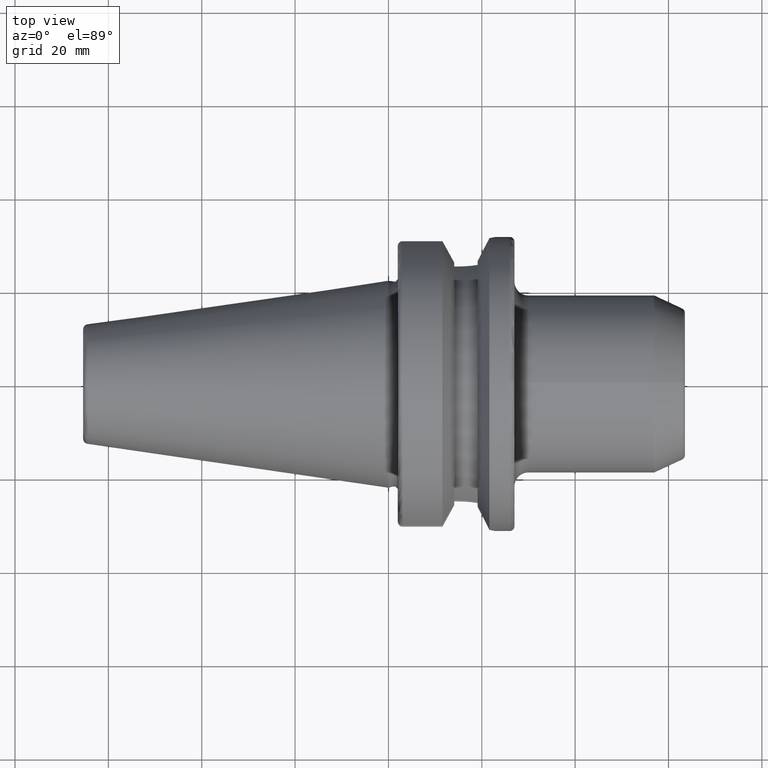
[diagram: clean part render]
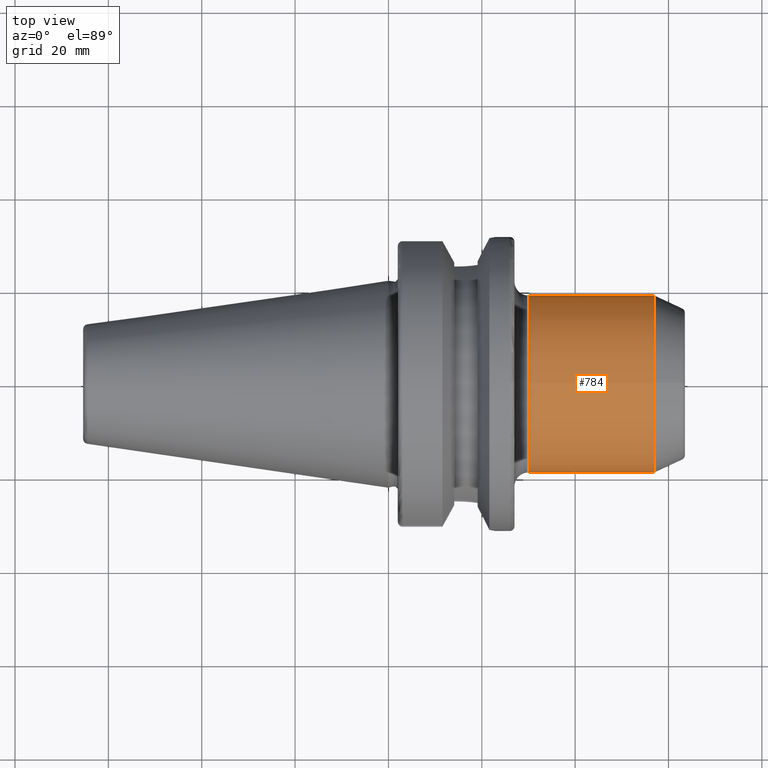
[diagram: same view with one face highlighted and labeled with its STEP entity id]
A machine part, top view. The second image highlights one B-rep face of the part: STEP entity #784.
In plain terms, the highlighted cylindrical surface (bore or boss wall) has radius 19.05 mm, axis along (1, 0, 0).
Its self-contained STEP definition (entity closure, byte-faithful):
#52=FACE_BOUND('',#181,.T.);
#61=CIRCLE('',#856,19.05);
#62=CIRCLE('',#857,19.05);
#63=CIRCLE('',#858,19.05);
#115=CYLINDRICAL_SURFACE('',#855,19.05);
#131=FACE_OUTER_BOUND('',#180,.T.);
#180=EDGE_LOOP('',(#550,#551,#552,#553,#554));
#181=EDGE_LOOP('',(#555));
#237=B_SPLINE_CURVE_WITH_KNOTS('',3,(#1362,#1363,#1364,#1365,#1366,#1367,
#1368,#1369,#1370,#1371,#1372,#1373,#1374,#1375,#1376,#1377,#1378,#1379,
#1380,#1381,#1382,#1383,#1384,#1385,#1386,#1387,#1388,#1389,#1390,#1391,
#1392),.UNSPECIFIED.,.T.,.F.,(4,1,1,1,1,1,1,1,1,1,1,1,1,1,1,1,1,1,1,1,1,
1,1,1,1,1,1,1,4),(-6.01360624481289,-5.82951625772678,-5.76815292869808,
-5.64542627064067,-5.52269961258327,-5.46133628355457,-5.33860962549716,
-5.27724629646846,-5.03179298035364,-4.93974798681059,-4.90906632229624,
-4.78633966423883,-4.66361300618143,-4.54088634812402,-4.43861413307618,
-4.37725080404748,-4.21361525997094,-4.0499797158944,-3.88634417181786,
-3.82498084278915,-3.72270862774131,-3.55907308366477,-3.31361976754996,
-3.25225643852126,-3.06816645143515,-2.94543979337774,-2.82271313532034,
-2.69998647726293,-2.57725981920553),.UNSPECIFIED.);
#257=LINE('',#1437,#301);
#301=VECTOR('',#965,19.05);
#343=VERTEX_POINT('',#1328);
#347=VERTEX_POINT('',#1434);
#348=VERTEX_POINT('',#1436);
#349=VERTEX_POINT('',#1438);
#423=EDGE_CURVE('',#343,#343,#237,.T.);
#427=EDGE_CURVE('',#347,#347,#61,.T.);
#428=EDGE_CURVE('',#347,#348,#257,.T.);
#429=EDGE_CURVE('',#349,#348,#62,.T.);
#430=EDGE_CURVE('',#348,#349,#63,.T.);
#550=ORIENTED_EDGE('',*,*,#427,.F.);
#551=ORIENTED_EDGE('',*,*,#428,.T.);
#552=ORIENTED_EDGE('',*,*,#429,.F.);
#553=ORIENTED_EDGE('',*,*,#430,.F.);
#554=ORIENTED_EDGE('',*,*,#428,.F.);
#555=ORIENTED_EDGE('',*,*,#423,.F.);
#784=ADVANCED_FACE('',(#131,#52),#115,.T.);
#855=AXIS2_PLACEMENT_3D('',#1433,#961,#962);
#856=AXIS2_PLACEMENT_3D('',#1435,#963,#964);
#857=AXIS2_PLACEMENT_3D('',#1439,#966,#967);
#858=AXIS2_PLACEMENT_3D('',#1440,#968,#969);
#961=DIRECTION('center_axis',(1.,0.,0.));
#962=DIRECTION('ref_axis',(0.,0.,-1.));
#963=DIRECTION('center_axis',(1.,0.,0.));
#964=DIRECTION('ref_axis',(0.,0.,-1.));
#965=DIRECTION('',(-1.,0.,0.));
#966=DIRECTION('center_axis',(-1.,0.,0.));
#967=DIRECTION('ref_axis',(0.,-1.22464679914735E-16,1.));
#968=DIRECTION('center_axis',(-1.,0.,0.));
#969=DIRECTION('ref_axis',(0.,-1.22464679914735E-16,1.));
#1328=CARTESIAN_POINT('',(34.4358,2.77555756156289E-16,-19.05));
#1362=CARTESIAN_POINT('Ctrl Pts',(34.4358,2.77555756156289E-16,-19.05));
#1363=CARTESIAN_POINT('Ctrl Pts',(34.4358,0.72196867574077,-19.05));
#1364=CARTESIAN_POINT('Ctrl Pts',(34.601879814108,1.73746107745432,-18.9903521379037));
#1365=CARTESIAN_POINT('Ctrl Pts',(35.1848052606902,3.13775058438493,-18.7995766141753));
#1366=CARTESIAN_POINT('Ctrl Pts',(35.8688325916073,4.20158889812893,-18.5930438091203));
#1367=CARTESIAN_POINT('Ctrl Pts',(36.7047386165858,5.02615773673336,-18.3791057573611));
#1368=CARTESIAN_POINT('Ctrl Pts',(37.7170798473628,5.74538534194473,-18.1666886309281));
#1369=CARTESIAN_POINT('Ctrl Pts',(38.6354633763464,6.18561296274329,-18.0191928377223));
#1370=CARTESIAN_POINT('Ctrl Pts',(40.3586272187347,6.66783981202055,-17.8466248467333));
#1371=CARTESIAN_POINT('Ctrl Pts',(41.9643618198634,6.66850142691638,-17.8463408483285));
#1372=CARTESIAN_POINT('Ctrl Pts',(43.4400711476521,6.21285603856927,-18.009454167078));
#1373=CARTESIAN_POINT('Ctrl Pts',(44.3640639050564,5.802998181804,-18.1463817928884));
#1374=CARTESIAN_POINT('Ctrl Pts',(45.3282961205286,5.1915319491947,-18.336273739841));
#1375=CARTESIAN_POINT('Ctrl Pts',(46.3304244375395,4.20114221030153,-18.5930116279061));
#1376=CARTESIAN_POINT('Ctrl Pts',(47.1065862871304,2.99477548558206,-18.8274563434551));
#1377=CARTESIAN_POINT('Ctrl Pts',(47.5196007511053,1.88405230887221,-18.9654743762629));
#1378=CARTESIAN_POINT('Ctrl Pts',(47.790239834832,0.563050923796351,-19.0586237854546));
#1379=CARTESIAN_POINT('Ctrl Pts',(47.7921793449442,-0.968134530896437,-19.0599912206811));
#1380=CARTESIAN_POINT('Ctrl Pts',(47.1921989795799,-2.95518281459495,-18.851716666255));
#1381=CARTESIAN_POINT('Ctrl Pts',(46.2769701009462,-4.25518687574198,-18.577063296619));
#1382=CARTESIAN_POINT('Ctrl Pts',(45.3658996572714,-5.12402121299558,-18.3518210575335));
#1383=CARTESIAN_POINT('Ctrl Pts',(44.2865157236704,-5.89957764605774,-18.121039488879));
#1384=CARTESIAN_POINT('Ctrl Pts',(42.2623797054644,-6.67011455821485,-17.8459031373588));
#1385=CARTESIAN_POINT('Ctrl Pts',(40.3585570425987,-6.66565043506348,-17.8468647876023));
#1386=CARTESIAN_POINT('Ctrl Pts',(38.3898433357335,-6.12047008001105,-18.0433426730419));
#1387=CARTESIAN_POINT('Ctrl Pts',(37.04058779564,-5.36230933325078,-18.2923117488831));
#1388=CARTESIAN_POINT('Ctrl Pts',(35.8687201329211,-4.19847238102379,-18.593486480569));
#1389=CARTESIAN_POINT('Ctrl Pts',(35.0476084528369,-2.92726442216337,-18.8411005696659));
#1390=CARTESIAN_POINT('Ctrl Pts',(34.5439454099811,-1.47996384107927,-19.0120505008795));
#1391=CARTESIAN_POINT('Ctrl Pts',(34.4358,-0.481312450493846,-19.05));
#1392=CARTESIAN_POINT('Ctrl Pts',(34.4358,2.77555756156289E-16,-19.05));
#1433=CARTESIAN_POINT('Origin',(41.9796269462229,0.,0.));
#1434=CARTESIAN_POINT('',(56.9592538924458,-2.33295215237571E-15,19.05));
#1435=CARTESIAN_POINT('Origin',(56.9592538924458,0.,0.));
#1436=CARTESIAN_POINT('',(30.,-2.33295215237571E-15,19.05));
#1437=CARTESIAN_POINT('',(41.9796269462229,-2.33295215237571E-15,19.05));
#1438=CARTESIAN_POINT('',(30.,0.,-19.05));
#1439=CARTESIAN_POINT('Origin',(30.,0.,0.));
#1440=CARTESIAN_POINT('Origin',(30.,0.,0.));